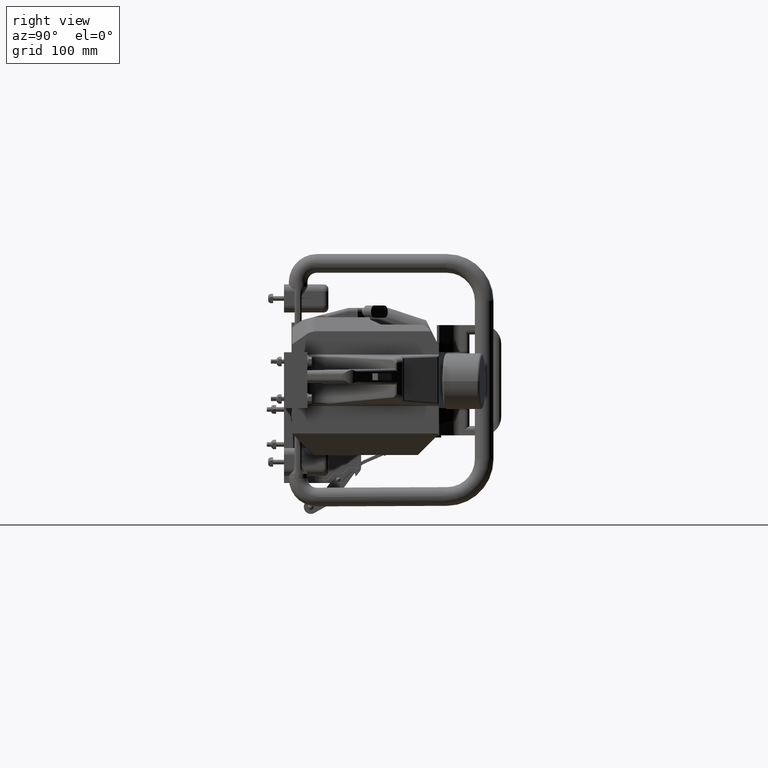
[diagram: clean part render]
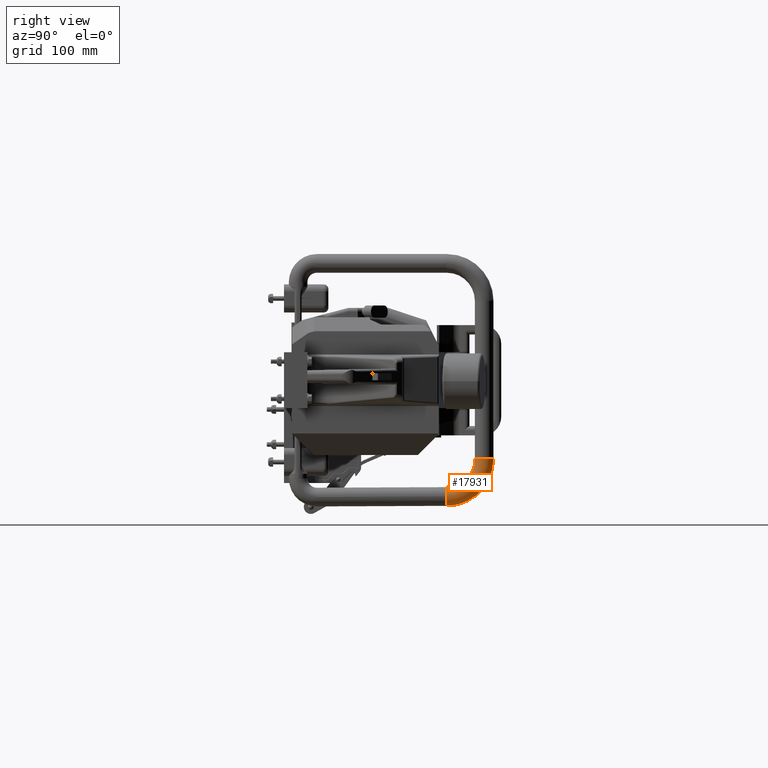
[diagram: same view with one face highlighted and labeled with its STEP entity id]
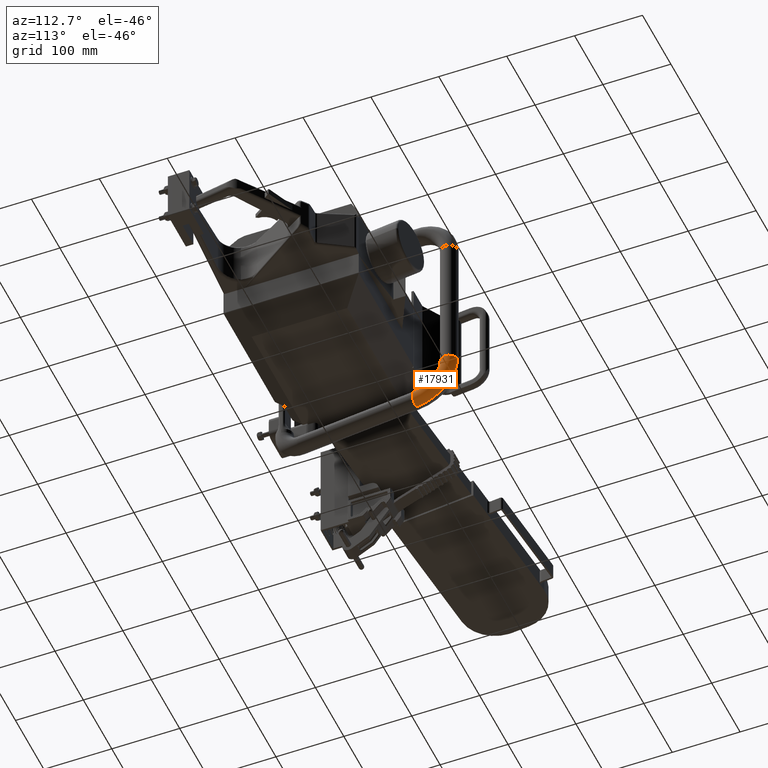
[diagram: same view with one face highlighted and labeled with its STEP entity id]
A machine part, right view. The second image highlights one B-rep face of the part: STEP entity #17931.
A second angle (auxiliary view) of the same face is appended — the face is thin or edge-on in the first view.
In plain terms, the highlighted toroidal blend (fillet) surface has major radius 50.8 mm and minor (blend) radius 12.7 mm.
Its self-contained STEP definition (entity closure, byte-faithful):
#3175 = CARTESIAN_POINT ( 'NONE',  ( 8.381073518102308400, 8.727949645759355900, -3.719590447335607000 ) ) ;
#3180 = CARTESIAN_POINT ( 'NONE',  ( 8.574006829843748200, 10.70990093910322600, -1.719609284278025700 ) ) ;
#3181 = DIRECTION ( 'NONE',  ( 2.076247160309741000E-017, 1.222980050563649000E-016, 1.000000000000000000 ) ) ;
#3182 = DIRECTION ( 'NONE',  ( -0.9812257564003101800, 0.1928626842513583300, 0.0000000000000000000 ) ) ;
#3183 = CARTESIAN_POINT ( 'NONE',  ( 8.380232509565289000, 8.719310194424524600, -1.719609284278025100 ) ) ;
#3184 = DIRECTION ( 'NONE',  ( 0.9952953723393650500, -0.09688716013922983600, -0.0000000000000000000 ) ) ;
#3185 = DIRECTION ( 'NONE',  ( 0.09688716013922996100, 0.9952953723393650500, 0.0000000000000000000 ) ) ;
#3186 = CARTESIAN_POINT ( 'NONE',  ( 8.381073518102308400, 8.727949645759355900, -3.719590447335607000 ) ) ;
#3187 = DIRECTION ( 'NONE',  ( 0.09688624761030294200, 0.9952859981785705500, 0.004340144430957566300 ) ) ;
#3188 = DIRECTION ( 'NONE',  ( -0.9905721367357531700, 0.09684986807817401500, -0.09688624761030247000 ) ) ;
#3189 = CARTESIAN_POINT ( 'NONE',  ( 8.380232509565289000, 8.719310194424524600, -1.719609284278025100 ) ) ;
#3190 = CARTESIAN_POINT ( 'NONE',  ( 8.574006829843748200, 10.70990093910322600, -1.719609284278025700 ) ) ;
#3191 = DIRECTION ( 'NONE',  ( 0.9952953723393650500, -0.09688716013922983600, -0.0000000000000000000 ) ) ;
#3192 = DIRECTION ( 'NONE',  ( 0.09688716013922980800, 0.9952953723393650500, 0.0000000000000000000 ) ) ;
#3194 = DIRECTION ( 'NONE',  ( 0.09688624761030294200, 0.9952859981785705500, 0.004340144430957566300 ) ) ;
#3195 = DIRECTION ( 'NONE',  ( -0.9905721367357531700, 0.09684986807817401500, -0.09688624761030247000 ) ) ;
#3196 = DIRECTION ( 'NONE',  ( 2.076247160309741000E-017, 1.222980050563649000E-016, 1.000000000000000000 ) ) ;
#3197 = DIRECTION ( 'NONE',  ( -0.9812257564003101800, 0.1928626842513583300, 0.0000000000000000000 ) ) ;
#16041 = ORIENTED_EDGE ( 'NONE', *, *, #19829, .T. ) ;
#16042 = ORIENTED_EDGE ( 'NONE', *, *, #19828, .T. ) ;
#16044 = ORIENTED_EDGE ( 'NONE', *, *, #19825, .F. ) ;
#16045 = ORIENTED_EDGE ( 'NONE', *, *, #19830, .F. ) ;
#16047 = ORIENTED_EDGE ( 'NONE', *, *, #19826, .F. ) ;
#16048 = ORIENTED_EDGE ( 'NONE', *, *, #19827, .T. ) ;
#17931 = ADVANCED_FACE ( 'NONE', ( #47654 ), #47647, .T. ) ;
#19825 = EDGE_CURVE ( 'NONE', #25088, #25076, #65620, .T. ) ;
#19826 = EDGE_CURVE ( 'NONE', #25107, #25085, #65621, .T. ) ;
#19827 = EDGE_CURVE ( 'NONE', #25107, #25037, #65622, .T. ) ;
#19828 = EDGE_CURVE ( 'NONE', #25033, #25076, #65623, .T. ) ;
#19829 = EDGE_CURVE ( 'NONE', #25037, #25033, #65624, .T. ) ;
#19830 = EDGE_CURVE ( 'NONE', #25085, #25088, #65625, .T. ) ;
#21871 = EDGE_LOOP ( 'NONE', ( #16041, #16042, #16044, #16045, #16047, #16048 ) ) ;
#25033 = VERTEX_POINT ( 'NONE', #27466 ) ;
#25037 = VERTEX_POINT ( 'NONE', #27473 ) ;
#25076 = VERTEX_POINT ( 'NONE', #27544 ) ;
#25085 = VERTEX_POINT ( 'NONE', #27561 ) ;
#25088 = VERTEX_POINT ( 'NONE', #27566 ) ;
#25107 = VERTEX_POINT ( 'NONE', #27601 ) ;
#27466 = CARTESIAN_POINT ( 'NONE',  ( 8.381283770236562300, 8.730109508593065100, -4.219585738100009900 ) ) ;
#27473 = CARTESIAN_POINT ( 'NONE',  ( 8.878721204271991900, 8.679506065689741600, -3.719590447335607000 ) ) ;
#27544 = CARTESIAN_POINT ( 'NONE',  ( 8.622450409913360800, 11.20754862527291000, -1.719609284278025700 ) ) ;
#27561 = CARTESIAN_POINT ( 'NONE',  ( 8.525563249774130300, 10.21225325293354500, -1.719609284278025700 ) ) ;
#27566 = CARTESIAN_POINT ( 'NONE',  ( 8.574006829843748200, 10.20990093910322600, -1.719609284278025700 ) ) ;
#27601 = CARTESIAN_POINT ( 'NONE',  ( 8.380863265968052600, 8.725789782925648600, -3.219595156571204900 ) ) ;
#40842 = AXIS2_PLACEMENT_3D ( 'NONE', #62123, #62127, #62131 ) ;
#47647 = TOROIDAL_SURFACE ( 'NONE', #40842, 1.999999999999971400, 0.4999999999999996700 ) ;
#47654 = FACE_OUTER_BOUND ( 'NONE', #21871, .T. ) ;
#62123 = CARTESIAN_POINT ( 'NONE',  ( 8.380232509565289000, 8.719310194424524600, -1.719609284278025100 ) ) ;
#62127 = DIRECTION ( 'NONE',  ( 0.9952953723393650500, -0.09688716013922983600, -0.0000000000000000000 ) ) ;
#62131 = DIRECTION ( 'NONE',  ( 0.09688716013922983600, 0.9952953723393650500, 0.0000000000000000000 ) ) ;
#64200 = AXIS2_PLACEMENT_3D ( 'NONE', #3180, #3181, #3182 ) ;
#64203 = AXIS2_PLACEMENT_3D ( 'NONE', #3183, #3184, #3185 ) ;
#64204 = AXIS2_PLACEMENT_3D ( 'NONE', #3186, #3187, #3188 ) ;
#64205 = AXIS2_PLACEMENT_3D ( 'NONE', #3189, #3191, #3192 ) ;
#64207 = AXIS2_PLACEMENT_3D ( 'NONE', #3175, #3194, #3195 ) ;
#64208 = AXIS2_PLACEMENT_3D ( 'NONE', #3190, #3196, #3197 ) ;
#65620 = CIRCLE ( 'NONE', #64200, 0.4999999999999997800 ) ;
#65621 = CIRCLE ( 'NONE', #64203, 1.499999999999970900 ) ;
#65622 = CIRCLE ( 'NONE', #64204, 0.4999999999999998300 ) ;
#65623 = CIRCLE ( 'NONE', #64205, 2.499999999999970200 ) ;
#65624 = CIRCLE ( 'NONE', #64207, 0.4999999999999998300 ) ;
#65625 = CIRCLE ( 'NONE', #64208, 0.4999999999999997800 ) ;